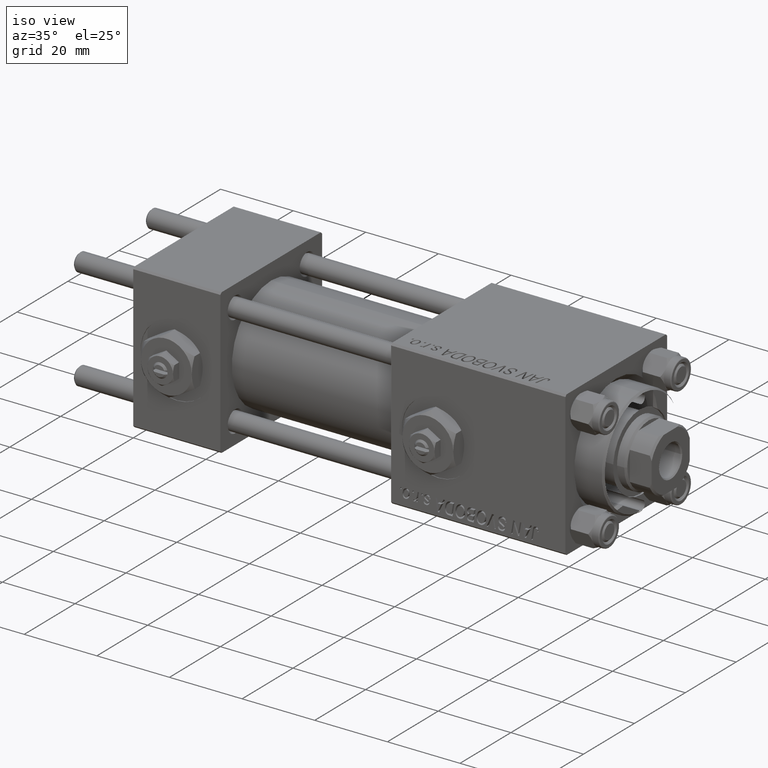
[diagram: clean part render]
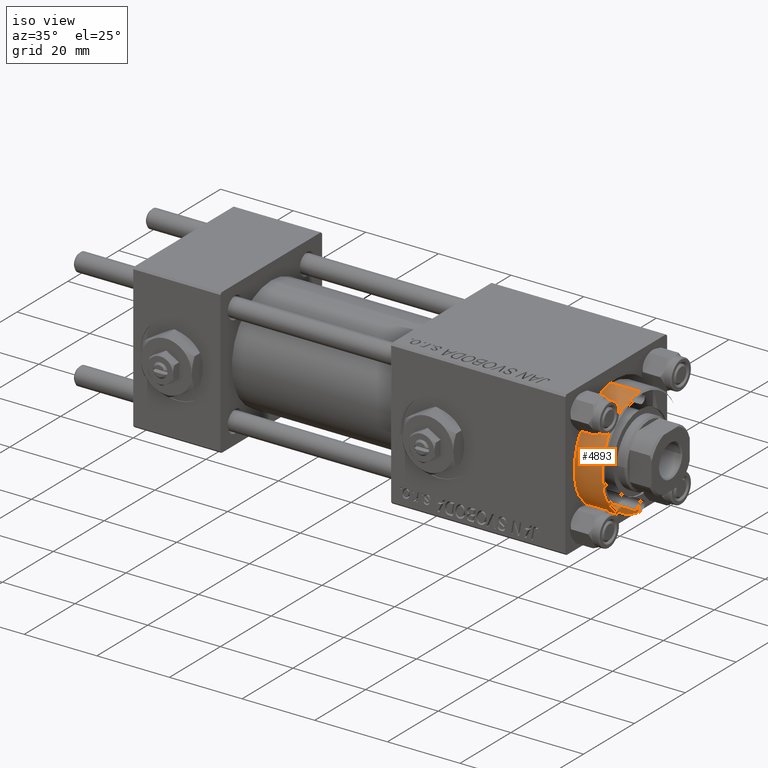
[diagram: same view with one face highlighted and labeled with its STEP entity id]
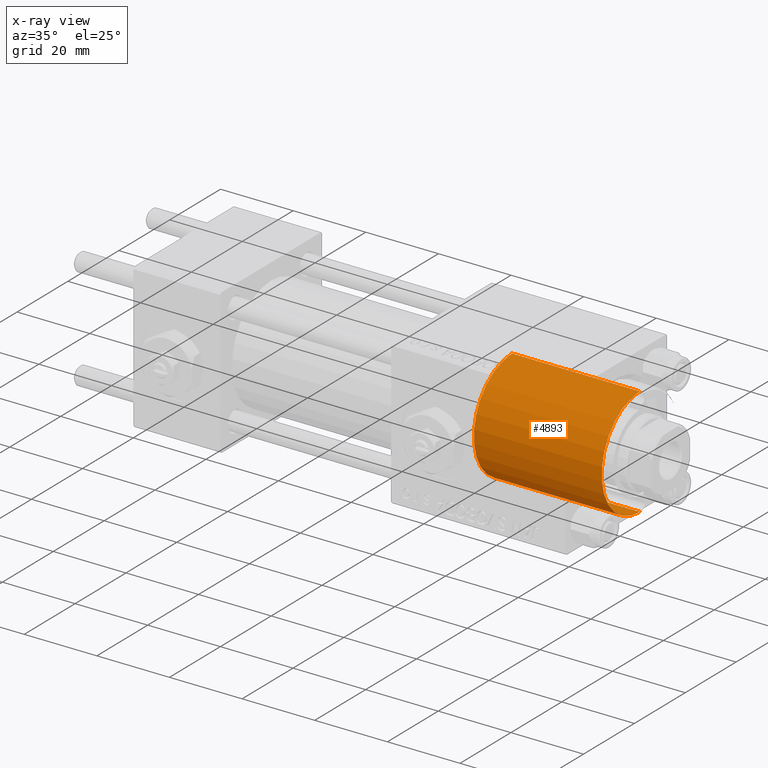
[diagram: x-ray of the same camera — body ghosted, the highlighted face saturated]
A machine part, iso view. The second image highlights one B-rep face of the part: STEP entity #4893.
The next image is the same camera in x-ray: the body ghosted, the highlighted face saturated — about 0% of this face is hidden behind the body in this view.
In plain terms, the highlighted cylindrical surface (partial cylindrical patch) has radius 15 mm, axis along (-1, -0, 0).
Its self-contained STEP definition (entity closure, byte-faithful):
#1767 = DIRECTION ( 'NONE',  ( 1.000000000000000000, 0.000000000000000000, 0.000000000000000000 ) ) ;
#2712 = AXIS2_PLACEMENT_3D ( 'NONE', #51665, #30238, #10276 ) ;
#3185 = VERTEX_POINT ( 'NONE', #33113 ) ;
#4220 = LINE ( 'NONE', #4477, #4317 ) ;
#4317 = VECTOR ( 'NONE', #16013, 1000.000000000000000 ) ;
#4477 = CARTESIAN_POINT ( 'NONE',  ( -15.00000000000000000, 0.000000000000000000, 28.69999999999999929 ) ) ;
#4716 = LINE ( 'NONE', #36251, #32416 ) ;
#4893 = ADVANCED_FACE ( 'NONE', ( #26521 ), #38877, .T. ) ;
#9433 = DIRECTION ( 'NONE',  ( -0.000000000000000000, -0.000000000000000000, -1.000000000000000000 ) ) ;
#9459 = ORIENTED_EDGE ( 'NONE', *, *, #51123, .T. ) ;
#10266 = CIRCLE ( 'NONE', #2712, 15.00000000000000000 ) ;
#10276 = DIRECTION ( 'NONE',  ( 1.000000000000000000, 0.000000000000000000, 0.000000000000000000 ) ) ;
#11090 = EDGE_LOOP ( 'NONE', ( #36807, #13446, #31974, #9459 ) ) ;
#11632 = VERTEX_POINT ( 'NONE', #17201 ) ;
#13446 = ORIENTED_EDGE ( 'NONE', *, *, #44104, .T. ) ;
#14349 = CARTESIAN_POINT ( 'NONE',  ( 0.000000000000000000, 0.000000000000000000, 0.000000000000000000 ) ) ;
#14797 = AXIS2_PLACEMENT_3D ( 'NONE', #46215, #50927, #47247 ) ;
#16013 = DIRECTION ( 'NONE',  ( -0.000000000000000000, -0.000000000000000000, -1.000000000000000000 ) ) ;
#17201 = CARTESIAN_POINT ( 'NONE',  ( 15.00000000000000000, 1.836970198721029589E-15, 0.000000000000000000 ) ) ;
#17273 = CARTESIAN_POINT ( 'NONE',  ( 15.00000000000000000, 1.836970198721029589E-15, 35.19999999999999574 ) ) ;
#22129 = VERTEX_POINT ( 'NONE', #17273 ) ;
#23504 = EDGE_CURVE ( 'NONE', #3185, #33115, #4220, .T. ) ;
#26521 = FACE_OUTER_BOUND ( 'NONE', #11090, .T. ) ;
#26686 = EDGE_CURVE ( 'NONE', #22129, #11632, #4716, .T. ) ;
#30238 = DIRECTION ( 'NONE',  ( 0.000000000000000000, 0.000000000000000000, -1.000000000000000000 ) ) ;
#31974 = ORIENTED_EDGE ( 'NONE', *, *, #23504, .T. ) ;
#32416 = VECTOR ( 'NONE', #9433, 1000.000000000000000 ) ;
#33113 = CARTESIAN_POINT ( 'NONE',  ( -15.00000000000000000, 0.000000000000000000, 35.19999999999999574 ) ) ;
#33115 = VERTEX_POINT ( 'NONE', #33947 ) ;
#33947 = CARTESIAN_POINT ( 'NONE',  ( -15.00000000000000000, 0.000000000000000000, 0.000000000000000000 ) ) ;
#36251 = CARTESIAN_POINT ( 'NONE',  ( 15.00000000000000000, 1.836970198721029589E-15, 28.69999999999999929 ) ) ;
#36807 = ORIENTED_EDGE ( 'NONE', *, *, #26686, .F. ) ;
#37999 = DIRECTION ( 'NONE',  ( 0.000000000000000000, 0.000000000000000000, 1.000000000000000000 ) ) ;
#38076 = AXIS2_PLACEMENT_3D ( 'NONE', #14349, #37999, #1767 ) ;
#38877 = CYLINDRICAL_SURFACE ( 'NONE', #14797, 15.00000000000000000 ) ;
#44104 = EDGE_CURVE ( 'NONE', #22129, #3185, #10266, .T. ) ;
#45597 = CIRCLE ( 'NONE', #38076, 15.00000000000000000 ) ;
#46215 = CARTESIAN_POINT ( 'NONE',  ( 0.000000000000000000, 0.000000000000000000, 28.69999999999999929 ) ) ;
#47247 = DIRECTION ( 'NONE',  ( -1.000000000000000000, 0.000000000000000000, 0.000000000000000000 ) ) ;
#50927 = DIRECTION ( 'NONE',  ( -0.000000000000000000, -0.000000000000000000, -1.000000000000000000 ) ) ;
#51123 = EDGE_CURVE ( 'NONE', #33115, #11632, #45597, .T. ) ;
#51665 = CARTESIAN_POINT ( 'NONE',  ( 0.000000000000000000, 0.000000000000000000, 35.19999999999999574 ) ) ;